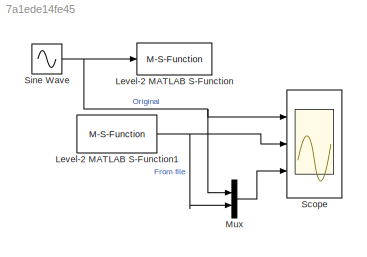
MODEL slx_7a1ede14fe45
KIND model
CONFIG AbsTol = auto
CONFIG EnableMultiTasking = off
CONFIG FixedStep = 0.1
CONFIG MaxStep = auto
CONFIG MinStep = auto
CONFIG RelTol = 1e-3
CONFIG SampleTimeConstraint = Unconstrained
CONFIG Solver = FixedStepDiscrete
CONFIG SolverName = FixedStepDiscrete
CONFIG StartTime = 0.0
CONFIG StopTime = 10.0
BLOCK [M-S-Function] Level-2 MATLAB S-Function
  FunctionName = filesink_msfun
  Parameters = 'testfile'
  Ports = [1]
BLOCK [M-S-Function] Level-2 MATLAB S-Function1
  FunctionName = filesource_msfun
  Parameters = 'testfile' 0
  Ports = [0, 1]
BLOCK [Mux] Mux
  DisplayOption = bar
  Inputs = 2
  Ports = [2, 1]
BLOCK [Scope] Scope
  NumInputPorts = 3
  Ports = [3]
  ScopeSpecificationString = Simulink.scopes.TimeScopeBlockCfg('CurrentConfiguration', extmgr.ConfigurationSet(extmgr.Configuration('Core','General UI',true),extmgr.Configuration('Core','Source UI',true),extmgr.Configuration('Sources','WiredSimulink',true),extmgr.Configuration('Visuals','Time Domain',true,'SerializedDisplays',{struct('MinYLimReal','-1.24986','MaxYLimReal','1.24951','YLabelReal','','MinYLimMag','0.00000','MaxY...<+2693ch>
BLOCK [Sin] Sine Wave
  Ports = [0, 1]
  SampleTime = 0
NET Level-2 MATLAB S-Function1:1 -> Mux:2, Scope:2
LINE Mux:1 -> Scope:3
NET Sine Wave:1 -> Level-2 MATLAB S-Function:1, Mux:1, Scope:1
note: NET lines group one-source signal fan-out (src -> all destinations, sorted); 1:1 wires keep LINE
